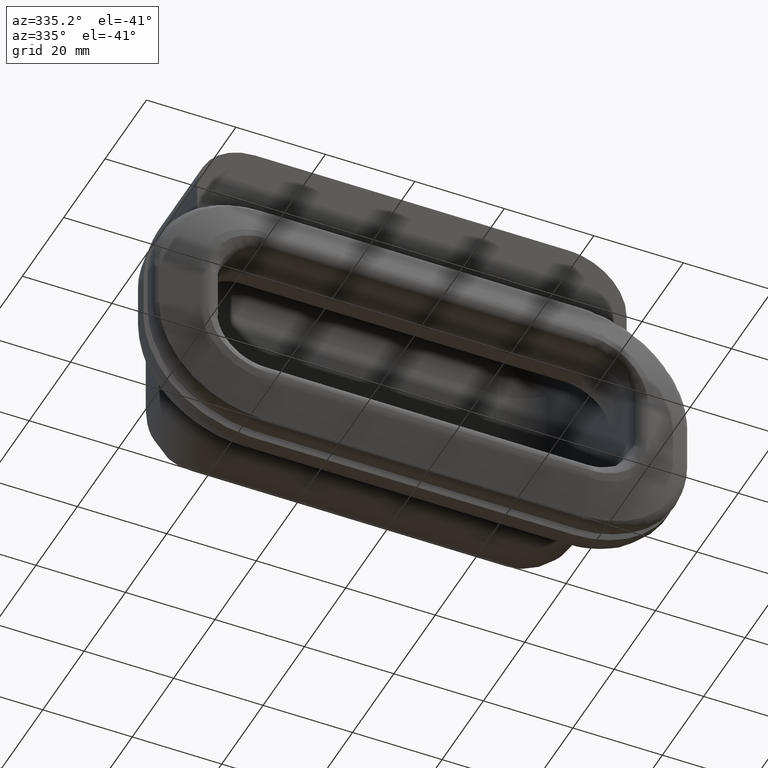
[diagram: clean part render]
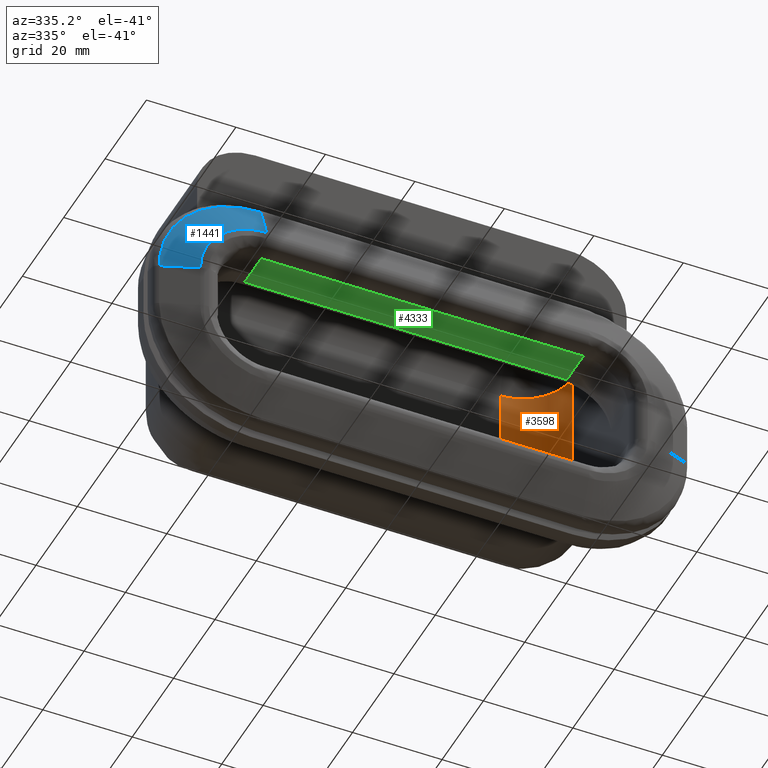
[diagram: same view with three faces highlighted in distinct colors, each labeled with its STEP entity id]
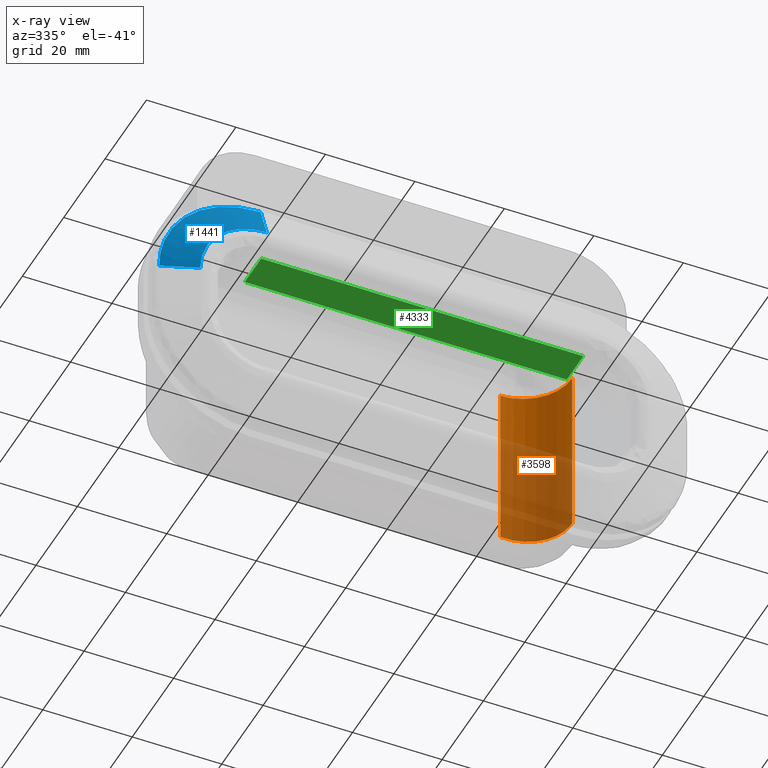
[diagram: x-ray of the same camera — body ghosted, the three highlighted faces saturated]
A machine part, auxiliary view with three faces highlighted in distinct colors.
The next image is the same camera in x-ray (body ghosted, the three faces saturated) — at least one of them is partly hidden behind the body in this view.
Their STEP definitions:

[orange] entity #3598 — the highlighted face is a freeform B-spline surface patch.
#2928=CARTESIAN_POINT('',(46.0,30.0,-4.999999999999910));
#2929=VERTEX_POINT('',#2928);
#3031=CARTESIAN_POINT('',(35.0,41.0,-3.999999999999915));
#3032=VERTEX_POINT('',#3031);
#3033=CARTESIAN_POINT('',(35.0,40.999999999999993,-3.999999999999915));
#3034=CARTESIAN_POINT('',(46.000000000000007,40.999999999999993,-4.999999999999914));
#3035=CARTESIAN_POINT('',(46.0,30.0,-4.999999999999914));
#3043=(BOUNDED_CURVE()B_SPLINE_CURVE(2,(#3033,#3034,#3035),.UNSPECIFIED.,.F.,.U.)CURVE()GEOMETRIC_REPRESENTATION_ITEM()QUASI_UNIFORM_CURVE()RATIONAL_B_SPLINE_CURVE((1.0,0.707106781186547,1.0))REPRESENTATION_ITEM(''));
#3044=EDGE_CURVE('',#3032,#2929,#3043,.T.);
#3302=CARTESIAN_POINT('',(46.0,30.0,34.0));
#3303=VERTEX_POINT('',#3302);
#3319=CARTESIAN_POINT('',(35.0,41.0,34.0));
#3320=VERTEX_POINT('',#3319);
#3334=CARTESIAN_POINT('',(46.0,30.0,34.0));
#3335=CARTESIAN_POINT('',(46.000000000000007,41.0,34.000000000000007));
#3336=CARTESIAN_POINT('',(35.0,40.999999999999993,34.0));
#3344=(BOUNDED_CURVE()B_SPLINE_CURVE(2,(#3334,#3335,#3336),.UNSPECIFIED.,.F.,.U.)CURVE()GEOMETRIC_REPRESENTATION_ITEM()QUASI_UNIFORM_CURVE()RATIONAL_B_SPLINE_CURVE((1.0,0.707106781186548,1.0))REPRESENTATION_ITEM(''));
#3345=EDGE_CURVE('',#3303,#3320,#3344,.T.);
#3570=CARTESIAN_POINT('',(34.712053568613392,40.996230574731129,-5.974999999999909));
#3571=CARTESIAN_POINT('',(34.712053568613392,40.996230574731129,34.999375000000001));
#3572=CARTESIAN_POINT('',(46.824832806101931,41.313414861828868,-5.974999999999909));
#3573=CARTESIAN_POINT('',(46.824832806101931,41.313414861828868,34.999375000000001));
#3574=CARTESIAN_POINT('',(45.972769273188902,29.226479168114164,-5.974999999999908));
#3575=CARTESIAN_POINT('',(45.972769273188902,29.226479168114164,34.999375000000008));
#3583=(BOUNDED_SURFACE()B_SPLINE_SURFACE(1,2,((#3570,#3572,#3574),(#3571,#3573,#3575)),.UNSPECIFIED.,.F.,.F.,.U.)B_SPLINE_SURFACE_WITH_KNOTS((2,2),(3,3),(0.0,40.974374999999917),(0.0,19.482565784972021),.UNSPECIFIED.)GEOMETRIC_REPRESENTATION_ITEM()RATIONAL_B_SPLINE_SURFACE(((1.0,0.670944223154768,0.996392648609106),(1.0,0.670944223154768,0.996392648609106)))REPRESENTATION_ITEM('')SURFACE());
#3584=CARTESIAN_POINT('',(35.0,41.0,-3.999999999999915));
#3585=CARTESIAN_POINT('',(35.0,41.0,34.0));
#3586=QUASI_UNIFORM_CURVE('',1,(#3584,#3585),.UNSPECIFIED.,.F.,.U.);
#3587=EDGE_CURVE('',#3032,#3320,#3586,.T.);
#3588=ORIENTED_EDGE('',*,*,#3587,.F.);
#3589=ORIENTED_EDGE('',*,*,#3044,.T.);
#3590=CARTESIAN_POINT('',(46.0,30.0,34.0));
#3591=CARTESIAN_POINT('',(46.0,30.0,-4.999999999999910));
#3592=QUASI_UNIFORM_CURVE('',1,(#3590,#3591),.UNSPECIFIED.,.F.,.U.);
#3593=EDGE_CURVE('',#3303,#2929,#3592,.T.);
#3594=ORIENTED_EDGE('',*,*,#3593,.F.);
#3595=ORIENTED_EDGE('',*,*,#3345,.T.);
#3596=EDGE_LOOP('',(#3588,#3589,#3594,#3595));
#3597=FACE_OUTER_BOUND('',#3596,.T.);
#3598=ADVANCED_FACE('',(#3597),#3583,.F.);

[blue] entity #1441 — the highlighted face is a freeform B-spline surface patch.
#796=CARTESIAN_POINT('',(-36.0,0.316816235697225,19.847102234484652));
#797=VERTEX_POINT('',#796);
#843=CARTESIAN_POINT('',(-50.847102234484602,0.316816235697227,5.000000000000091));
#844=VERTEX_POINT('',#843);
#890=CARTESIAN_POINT('',(-50.847102234484566,0.316816235697228,5.000000000000091));
#891=CARTESIAN_POINT('',(-50.847102234484574,0.316816235697228,19.847102234484673));
#892=CARTESIAN_POINT('',(-36.0,0.316816235697228,19.847102234484669));
#900=(BOUNDED_CURVE()B_SPLINE_CURVE(2,(#890,#891,#892),.UNSPECIFIED.,.F.,.U.)CURVE()GEOMETRIC_REPRESENTATION_ITEM()QUASI_UNIFORM_CURVE()RATIONAL_B_SPLINE_CURVE((1.0,0.707106781186547,1.0))REPRESENTATION_ITEM(''));
#901=EDGE_CURVE('',#844,#797,#900,.T.);
#1232=CARTESIAN_POINT('',(-58.700604291139697,3.254026004886210,5.000000000000091));
#1233=VERTEX_POINT('',#1232);
#1279=CARTESIAN_POINT('',(-36.0,3.254026004886200,27.700604291139751));
#1280=VERTEX_POINT('',#1279);
#1326=CARTESIAN_POINT('',(-36.0,3.254026004886210,27.700604291139790));
#1327=CARTESIAN_POINT('',(-58.700604291139690,3.254026004886211,27.700604291139786));
#1328=CARTESIAN_POINT('',(-58.700604291139697,3.254026004886210,5.000000000000091));
#1336=(BOUNDED_CURVE()B_SPLINE_CURVE(2,(#1326,#1327,#1328),.UNSPECIFIED.,.F.,.U.)CURVE()GEOMETRIC_REPRESENTATION_ITEM()QUASI_UNIFORM_CURVE()RATIONAL_B_SPLINE_CURVE((1.0,0.707106781186547,1.0))REPRESENTATION_ITEM(''));
#1337=EDGE_CURVE('',#1280,#1233,#1336,.T.);
#1392=CARTESIAN_POINT('',(-36.0,3.254026004886200,27.700604291139751));
#1393=CARTESIAN_POINT('',(-36.0,0.316816235697225,19.847102234484652));
#1394=QUASI_UNIFORM_CURVE('',1,(#1392,#1393),.UNSPECIFIED.,.F.,.U.);
#1395=EDGE_CURVE('',#1280,#797,#1394,.T.);
#1417=CARTESIAN_POINT('',(-35.616487690220502,0.243385991467500,19.645744231922400));
#1418=CARTESIAN_POINT('',(-35.400499449030661,3.329292005221678,27.894002389236601));
#1419=CARTESIAN_POINT('',(-51.749349350802184,0.243385991467500,20.068198082052938));
#1420=CARTESIAN_POINT('',(-60.619140957021891,3.329292005221678,28.554375757846309));
#1421=CARTESIAN_POINT('',(-50.614496413008339,0.243385991467500,3.969757119508239));
#1422=CARTESIAN_POINT('',(-58.845156278752384,3.329292005221678,3.389540156241196));
#1430=(BOUNDED_SURFACE()B_SPLINE_SURFACE(1,2,((#1417,#1419,#1421),(#1418,#1420,#1422)),.UNSPECIFIED.,.F.,.F.,.U.)B_SPLINE_SURFACE_WITH_KNOTS((2,2),(3,3),(0.0,8.809269519986145),(0.0,40.562436791255877),.UNSPECIFIED.)GEOMETRIC_REPRESENTATION_ITEM()RATIONAL_B_SPLINE_SURFACE(((1.0,0.670944223154768,0.996392648609106),(1.0,0.670944223154768,0.996392648609106)))REPRESENTATION_ITEM('')SURFACE());
#1431=ORIENTED_EDGE('',*,*,#1395,.F.);
#1432=ORIENTED_EDGE('',*,*,#1337,.T.);
#1433=CARTESIAN_POINT('',(-58.700604291139697,3.254026004886210,5.000000000000091));
#1434=CARTESIAN_POINT('',(-50.847102234484602,0.316816235697227,5.000000000000091));
#1435=QUASI_UNIFORM_CURVE('',1,(#1433,#1434),.UNSPECIFIED.,.F.,.U.);
#1436=EDGE_CURVE('',#1233,#844,#1435,.T.);
#1437=ORIENTED_EDGE('',*,*,#1436,.T.);
#1438=ORIENTED_EDGE('',*,*,#901,.T.);
#1439=EDGE_LOOP('',(#1431,#1432,#1437,#1438));
#1440=FACE_OUTER_BOUND('',#1439,.T.);
#1441=ADVANCED_FACE('',(#1440),#1430,.T.);

[green] entity #4333 — the highlighted face is a freeform B-spline surface patch.
#342=CARTESIAN_POINT('',(36.0,3.0,15.0));
#343=VERTEX_POINT('',#342);
#404=CARTESIAN_POINT('',(-36.0,3.0,15.0));
#405=VERTEX_POINT('',#404);
#472=CARTESIAN_POINT('',(36.0,3.0,15.0));
#473=CARTESIAN_POINT('',(-36.0,3.0,15.0));
#474=QUASI_UNIFORM_CURVE('',1,(#472,#473),.UNSPECIFIED.,.F.,.U.);
#475=EDGE_CURVE('',#343,#405,#474,.T.);
#1565=CARTESIAN_POINT('',(36.0,11.0,15.0));
#1566=VERTEX_POINT('',#1565);
#1625=CARTESIAN_POINT('',(-36.0,11.0,15.0));
#1626=VERTEX_POINT('',#1625);
#1648=CARTESIAN_POINT('',(-36.0,11.0,15.0));
#1649=CARTESIAN_POINT('',(36.0,11.0,15.0));
#1650=QUASI_UNIFORM_CURVE('',1,(#1648,#1649),.UNSPECIFIED.,.F.,.U.);
#1651=EDGE_CURVE('',#1626,#1566,#1650,.T.);
#3234=CARTESIAN_POINT('',(-36.0,3.0,15.0));
#3235=CARTESIAN_POINT('',(-36.0,11.0,15.0));
#3236=QUASI_UNIFORM_CURVE('',1,(#3234,#3235),.UNSPECIFIED.,.F.,.U.);
#3237=EDGE_CURVE('',#405,#1626,#3236,.T.);
#3269=CARTESIAN_POINT('',(36.0,11.0,15.0));
#3270=CARTESIAN_POINT('',(36.0,3.0,15.0));
#3271=QUASI_UNIFORM_CURVE('',1,(#3269,#3270),.UNSPECIFIED.,.F.,.U.);
#3272=EDGE_CURVE('',#1566,#343,#3271,.T.);
#4322=CARTESIAN_POINT('',(-39.596399860450028,2.600400015505552,15.0));
#4323=CARTESIAN_POINT('',(39.596401791640517,2.600400015505552,15.0));
#4324=CARTESIAN_POINT('',(-39.596399860450028,11.399600199071170,15.0));
#4325=CARTESIAN_POINT('',(39.596401791640517,11.399600199071170,15.0));
#4326=B_SPLINE_SURFACE_WITH_KNOTS('',1,1,((#4322,#4324),(#4323,#4325)),.UNSPECIFIED.,.F.,.F.,.U.,(2,2),(2,2),(0.0,79.192801652090537),(0.0,8.799200183565617),.UNSPECIFIED.);
#4327=ORIENTED_EDGE('',*,*,#3272,.T.);
#4328=ORIENTED_EDGE('',*,*,#475,.T.);
#4329=ORIENTED_EDGE('',*,*,#3237,.T.);
#4330=ORIENTED_EDGE('',*,*,#1651,.T.);
#4331=EDGE_LOOP('',(#4327,#4328,#4329,#4330));
#4332=FACE_OUTER_BOUND('',#4331,.T.);
#4333=ADVANCED_FACE('',(#4332),#4326,.F.);